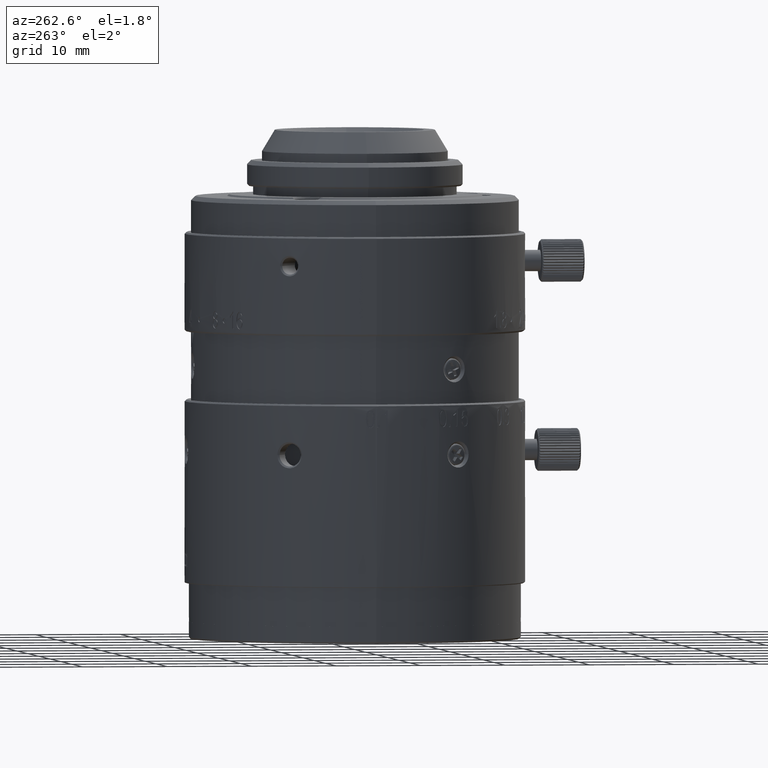
[diagram: clean part render]
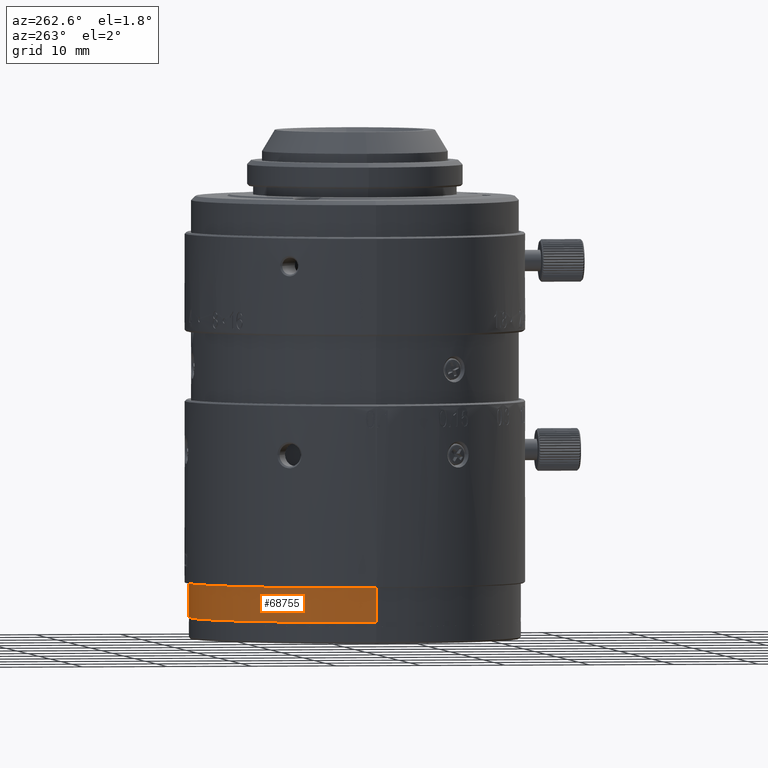
[diagram: same view with one face highlighted and labeled with its STEP entity id]
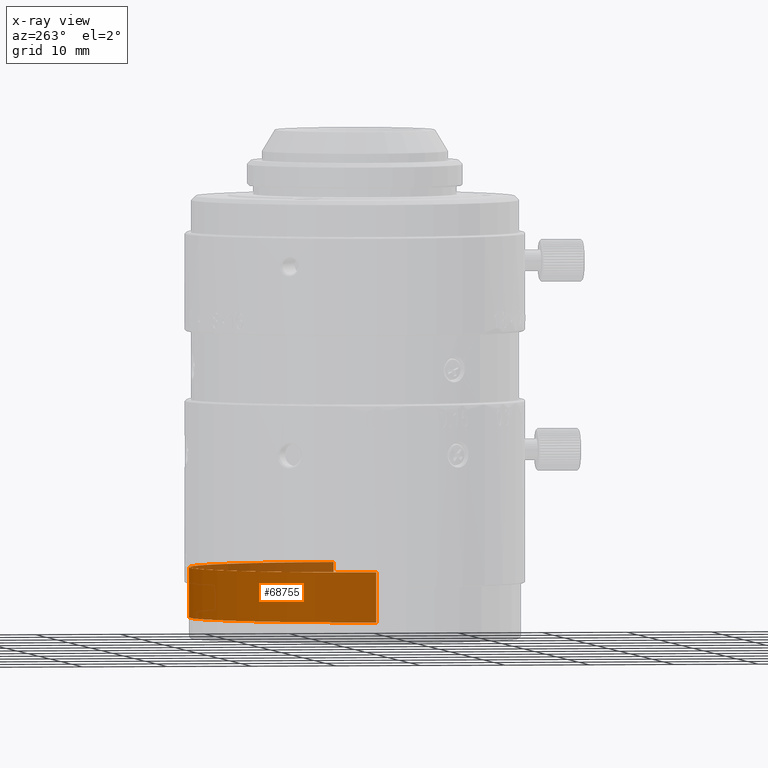
[diagram: x-ray of the same camera — body ghosted, the highlighted face saturated]
A machine part, auxiliary view. The second image highlights one B-rep face of the part: STEP entity #68755.
The next image is the same camera in x-ray: the body ghosted, the highlighted face saturated — about 11% of this face is hidden behind the body in this view.
In plain terms, the highlighted cylindrical surface (partial cylindrical patch) has radius 19.5 mm, axis along (0, 0, -1).
Its self-contained STEP definition (entity closure, byte-faithful):
#1526 = EDGE_CURVE ( 'NONE', #74955, #56265, #60387, .T. ) ;
#3128 = VECTOR ( 'NONE', #24941, 1000.000000000000000 ) ;
#3786 = CARTESIAN_POINT ( 'NONE',  ( 0.000000000000000000, 0.000000000000000000, 5.554946000000000161 ) ) ;
#10448 = EDGE_CURVE ( 'NONE', #40587, #13842, #14283, .T. ) ;
#10667 = CARTESIAN_POINT ( 'NONE',  ( 19.50000000000000000, 0.000000000000000000, -0.3203540000000000276 ) ) ;
#10891 = DIRECTION ( 'NONE',  ( -1.000000000000000000, 0.000000000000000000, 0.000000000000000000 ) ) ;
#11427 = DIRECTION ( 'NONE',  ( 0.000000000000000000, 0.000000000000000000, -1.000000000000000000 ) ) ;
#12049 = VECTOR ( 'NONE', #11427, 1000.000000000000000 ) ;
#13339 = CARTESIAN_POINT ( 'NONE',  ( -19.50000000000000000, 0.000000000000000000, 5.554946000000000161 ) ) ;
#13842 = VERTEX_POINT ( 'NONE', #72060 ) ;
#14283 = CIRCLE ( 'NONE', #71311, 19.50000000000000000 ) ;
#15654 = ORIENTED_EDGE ( 'NONE', *, *, #1526, .F. ) ;
#16692 = DIRECTION ( 'NONE',  ( 0.000000000000000000, 0.000000000000000000, -1.000000000000000000 ) ) ;
#24941 = DIRECTION ( 'NONE',  ( 0.000000000000000000, 0.000000000000000000, -1.000000000000000000 ) ) ;
#27184 = AXIS2_PLACEMENT_3D ( 'NONE', #65328, #67773, #67372 ) ;
#28370 = EDGE_CURVE ( 'NONE', #13842, #74955, #81843, .T. ) ;
#30418 = CARTESIAN_POINT ( 'NONE',  ( -19.50000000000000000, 0.000000000000000000, -0.3203540000000000276 ) ) ;
#30542 = CARTESIAN_POINT ( 'NONE',  ( 19.50000000000000000, 0.000000000000000000, 5.554946000000000161 ) ) ;
#35656 = ORIENTED_EDGE ( 'NONE', *, *, #44240, .T. ) ;
#37174 = LINE ( 'NONE', #30542, #12049 ) ;
#40587 = VERTEX_POINT ( 'NONE', #54714 ) ;
#44240 = EDGE_CURVE ( 'NONE', #40587, #56265, #37174, .T. ) ;
#53154 = ORIENTED_EDGE ( 'NONE', *, *, #28370, .F. ) ;
#54714 = CARTESIAN_POINT ( 'NONE',  ( 19.50000000000000000, 0.000000000000000000, 5.554946000000000161 ) ) ;
#56265 = VERTEX_POINT ( 'NONE', #10667 ) ;
#60387 = CIRCLE ( 'NONE', #27184, 19.50000000000000000 ) ;
#61136 = CYLINDRICAL_SURFACE ( 'NONE', #69523, 19.50000000000000000 ) ;
#65328 = CARTESIAN_POINT ( 'NONE',  ( 0.000000000000000000, 0.000000000000000000, -0.3203540000000000276 ) ) ;
#66510 = DIRECTION ( 'NONE',  ( 1.000000000000000000, 0.000000000000000000, 0.000000000000000000 ) ) ;
#67372 = DIRECTION ( 'NONE',  ( -1.000000000000000000, 0.000000000000000000, 0.000000000000000000 ) ) ;
#67773 = DIRECTION ( 'NONE',  ( 0.000000000000000000, 0.000000000000000000, -1.000000000000000000 ) ) ;
#68755 = ADVANCED_FACE ( 'NONE', ( #79826 ), #61136, .T. ) ;
#69523 = AXIS2_PLACEMENT_3D ( 'NONE', #81054, #16692, #10891 ) ;
#71311 = AXIS2_PLACEMENT_3D ( 'NONE', #3786, #79342, #66510 ) ;
#72060 = CARTESIAN_POINT ( 'NONE',  ( -19.50000000000000000, 0.000000000000000000, 5.554946000000000161 ) ) ;
#73970 = EDGE_LOOP ( 'NONE', ( #35656, #15654, #53154, #76134 ) ) ;
#74955 = VERTEX_POINT ( 'NONE', #30418 ) ;
#76134 = ORIENTED_EDGE ( 'NONE', *, *, #10448, .F. ) ;
#79342 = DIRECTION ( 'NONE',  ( 0.000000000000000000, 0.000000000000000000, 1.000000000000000000 ) ) ;
#79826 = FACE_OUTER_BOUND ( 'NONE', #73970, .T. ) ;
#81054 = CARTESIAN_POINT ( 'NONE',  ( 0.000000000000000000, 0.000000000000000000, 0.1796460000000000001 ) ) ;
#81843 = LINE ( 'NONE', #13339, #3128 ) ;